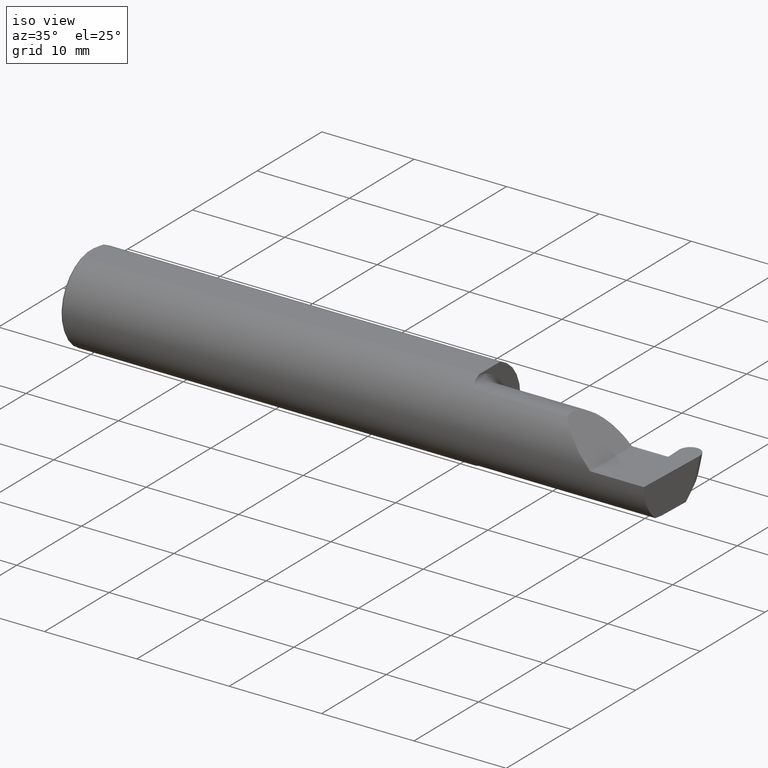
[diagram: clean part render]
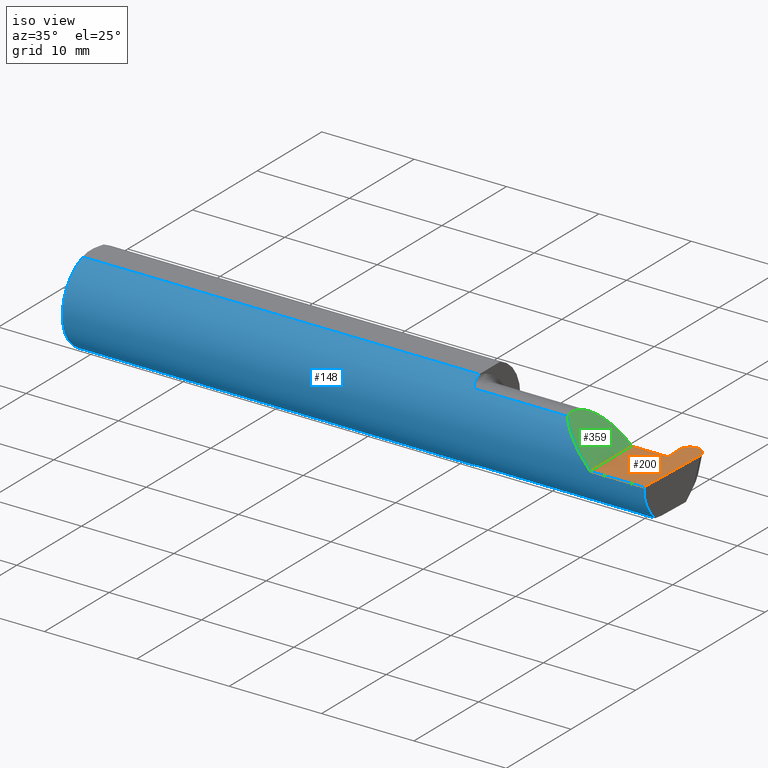
[diagram: same view with three faces highlighted in distinct colors, each labeled with its STEP entity id]
A machine part, iso view with three faces highlighted in distinct colors.
Their STEP definitions:

[orange] entity #200 — the highlighted planar face has unit normal (-0, 0, -1).
#2 = ORIENTED_EDGE ( 'NONE', *, *, #480, .F. ) ;
#6 = EDGE_CURVE ( 'NONE', #579, #405, #473, .T. ) ;
#49 = ORIENTED_EDGE ( 'NONE', *, *, #268, .T. ) ;
#77 = LINE ( 'NONE', #295, #215 ) ;
#80 = DIRECTION ( 'NONE',  ( 1.000000000000000000, -0.000000000000000000, -0.000000000000000000 ) ) ;
#90 = ORIENTED_EDGE ( 'NONE', *, *, #6, .F. ) ;
#94 = FACE_OUTER_BOUND ( 'NONE', #140, .T. ) ;
#101 = AXIS2_PLACEMENT_3D ( 'NONE', #285, #611, #175 ) ;
#134 = VECTOR ( 'NONE', #365, 39.37007874015748143 ) ;
#135 = EDGE_CURVE ( 'NONE', #499, #192, #312, .T. ) ;
#139 = CARTESIAN_POINT ( 'NONE',  ( 2.260000000000000231, -0.1873499999999999888, 2.939152317953647352E-17 ) ) ;
#140 = EDGE_LOOP ( 'NONE', ( #595, #476, #525, #262, #340, #2, #90, #389, #49 ) ) ;
#142 = DIRECTION ( 'NONE',  ( -1.000000000000000000, -0.000000000000000000, -0.000000000000000000 ) ) ;
#160 = CARTESIAN_POINT ( 'NONE',  ( 2.429140065301251372, 0.1846500000000001473, 8.878101985489642774E-18 ) ) ;
#175 = DIRECTION ( 'NONE',  ( -1.000000000000000000, 0.000000000000000000, 1.224646799147353947E-16 ) ) ;
#189 = EDGE_CURVE ( 'NONE', #488, #356, #431, .T. ) ;
#192 = VERTEX_POINT ( 'NONE', #479 ) ;
#195 = CARTESIAN_POINT ( 'NONE',  ( 3.749399456654646757E-32, -0.1873499999999999610, 3.061616997868383634E-16 ) ) ;
#200 = ADVANCED_FACE ( 'NONE', ( #94 ), #582, .F. ) ;
#203 = CARTESIAN_POINT ( 'NONE',  ( 2.488576259503493926, -0.1873499999999999888, 0.000000000000000000 ) ) ;
#211 = CARTESIAN_POINT ( 'NONE',  ( 2.411899392914586659, 0.1370998259008695541, 0.000000000000000000 ) ) ;
#215 = VECTOR ( 'NONE', #675, 39.37007874015748143 ) ;
#228 = DIRECTION ( 'NONE',  ( -0.03489949670249319069, -0.9993908270190959842, 0.000000000000000000 ) ) ;
#243 = LINE ( 'NONE', #515, #694 ) ;
#262 = ORIENTED_EDGE ( 'NONE', *, *, #610, .F. ) ;
#268 = EDGE_CURVE ( 'NONE', #614, #654, #587, .T. ) ;
#285 = CARTESIAN_POINT ( 'NONE',  ( 2.500000000000000000, -0.2500000000000000555, 0.000000000000000000 ) ) ;
#295 = CARTESIAN_POINT ( 'NONE',  ( 2.260000000000000231, -0.2500000000000000555, 2.939152317953647352E-17 ) ) ;
#312 = LINE ( 'NONE', #424, #134 ) ;
#323 = CARTESIAN_POINT ( 'NONE',  ( 2.410932386210230760, 0.1647912748130948291, 1.110789957736176039E-17 ) ) ;
#328 = DIRECTION ( 'NONE',  ( 1.000000000000000000, 2.398695346254066018E-17, 0.000000000000000000 ) ) ;
#330 = EDGE_CURVE ( 'NONE', #333, #654, #243, .T. ) ;
#333 = VERTEX_POINT ( 'NONE', #353 ) ;
#337 = CARTESIAN_POINT ( 'NONE',  ( 2.456309424548497322, 0.1846500000000000363, 0.000000000000000000 ) ) ;
#340 = ORIENTED_EDGE ( 'NONE', *, *, #189, .F. ) ;
#353 = CARTESIAN_POINT ( 'NONE',  ( 2.455496265451502236, 0.1846500000000000363, 0.000000000000000000 ) ) ;
#356 = VERTEX_POINT ( 'NONE', #409 ) ;
#365 = DIRECTION ( 'NONE',  ( -0.03489949670249400948, 0.9993908270190959842, -0.000000000000000000 ) ) ;
#370 = CARTESIAN_POINT ( 'NONE',  ( 2.455496265451502236, 0.1846500000000000363, 0.000000000000000000 ) ) ;
#389 = ORIENTED_EDGE ( 'NONE', *, *, #677, .F. ) ;
#395 = CARTESIAN_POINT ( 'NONE',  ( 2.499906297085412898, 0.1370998259008695819, 0.000000000000000000 ) ) ;
#405 = VERTEX_POINT ( 'NONE', #139 ) ;
#407 = CARTESIAN_POINT ( 'NONE',  ( 2.260000000000000231, 0.06665000000000001479, 9.797174393178831081E-17 ) ) ;
#409 = CARTESIAN_POINT ( 'NONE',  ( 2.405238904245578624, 0.06664999999999991764, 0.000000000000000000 ) ) ;
#411 = VECTOR ( 'NONE', #328, 39.37007874015748143 ) ;
#424 = CARTESIAN_POINT ( 'NONE',  ( 2.411832552795360574, 0.1390138764844879860, 0.000000000000000000 ) ) ;
#430 = LINE ( 'NONE', #649, #471 ) ;
#431 = LINE ( 'NONE', #650, #411 ) ;
#439 = DIRECTION ( 'NONE',  ( 1.000000000000000000, -0.000000000000000000, -0.000000000000000000 ) ) ;
#452 = CARTESIAN_POINT ( 'NONE',  ( 2.499906297085412898, 0.1370998259008695819, 0.000000000000000000 ) ) ;
#471 = VECTOR ( 'NONE', #439, 39.37007874015748143 ) ;
#473 = LINE ( 'NONE', #195, #603 ) ;
#476 = ORIENTED_EDGE ( 'NONE', *, *, #533, .T. ) ;
#479 = CARTESIAN_POINT ( 'NONE',  ( 2.411899392914586659, 0.1370998259008695541, 0.000000000000000000 ) ) ;
#480 = EDGE_CURVE ( 'NONE', #405, #488, #77, .T. ) ;
#488 = VERTEX_POINT ( 'NONE', #407 ) ;
#499 = VERTEX_POINT ( 'NONE', #623 ) ;
#500 = LINE ( 'NONE', #551, #663 ) ;
#509 = CARTESIAN_POINT ( 'NONE',  ( 2.456309424548497322, 0.1846500000000000363, 0.000000000000000000 ) ) ;
#515 = CARTESIAN_POINT ( 'NONE',  ( -0.001039370078739994957, 0.1846500000000000363, 0.000000000000000000 ) ) ;
#525 = ORIENTED_EDGE ( 'NONE', *, *, #135, .F. ) ;
#533 = EDGE_CURVE ( 'NONE', #333, #192, #684, .T. ) ;
#551 = CARTESIAN_POINT ( 'NONE',  ( 2.499973137204639428, 0.1390138764844880415, 0.000000000000000000 ) ) ;
#561 = CARTESIAN_POINT ( 'NONE',  ( 2.482665624698748186, 0.1846499999999999808, 5.261345637967953601E-18 ) ) ;
#579 = VERTEX_POINT ( 'NONE', #203 ) ;
#582 = PLANE ( 'NONE',  #101 ) ;
#587 =( BOUNDED_CURVE ( )  B_SPLINE_CURVE ( 3, ( #452, #604, #561, #509 ),
 .UNSPECIFIED., .F., .T. ) 
 B_SPLINE_CURVE_WITH_KNOTS ( ( 4, 4 ),
 ( 1.627103621474502049, 3.225696776093220475 ),
 .UNSPECIFIED. ) 
 CURVE ( )  GEOMETRIC_REPRESENTATION_ITEM ( )  RATIONAL_B_SPLINE_CURVE ( ( 1.000000000000000000, 0.7981407609938095948, 0.7981407609938095948, 1.000000000000000000 ) ) 
 REPRESENTATION_ITEM ( '' )  );
#595 = ORIENTED_EDGE ( 'NONE', *, *, #330, .F. ) ;
#603 = VECTOR ( 'NONE', #142, 39.37007874015748143 ) ;
#604 = CARTESIAN_POINT ( 'NONE',  ( 2.500873303789769242, 0.1647912748130947458, 3.031548046095857169E-18 ) ) ;
#610 = EDGE_CURVE ( 'NONE', #356, #499, #430, .T. ) ;
#611 = DIRECTION ( 'NONE',  ( -1.224646799147353947E-16, 0.000000000000000000, -1.000000000000000000 ) ) ;
#614 = VERTEX_POINT ( 'NONE', #395 ) ;
#623 = CARTESIAN_POINT ( 'NONE',  ( 2.414359555045604289, 0.06664999999999991764, 0.000000000000000000 ) ) ;
#649 = CARTESIAN_POINT ( 'NONE',  ( 2.414359555045604289, 0.06664999999999991764, 0.000000000000000000 ) ) ;
#650 = CARTESIAN_POINT ( 'NONE',  ( 1.699999999999999956, 0.06664999999999998703, 9.797174393178831081E-17 ) ) ;
#654 = VERTEX_POINT ( 'NONE', #337 ) ;
#663 = VECTOR ( 'NONE', #228, 39.37007874015748854 ) ;
#675 = DIRECTION ( 'NONE',  ( -0.000000000000000000, 1.000000000000000000, -0.000000000000000000 ) ) ;
#677 = EDGE_CURVE ( 'NONE', #614, #579, #500, .T. ) ;
#684 =( BOUNDED_CURVE ( )  B_SPLINE_CURVE ( 3, ( #370, #160, #323, #211 ),
 .UNSPECIFIED., .F., .T. ) 
 B_SPLINE_CURVE_WITH_KNOTS ( ( 4, 4 ),
 ( 3.057488531086357764, 4.656081685705083295 ),
 .UNSPECIFIED. ) 
 CURVE ( )  GEOMETRIC_REPRESENTATION_ITEM ( )  RATIONAL_B_SPLINE_CURVE ( ( 1.000000000000000000, 0.7981407609938078185, 0.7981407609938078185, 1.000000000000000000 ) ) 
 REPRESENTATION_ITEM ( '' )  );
#694 = VECTOR ( 'NONE', #80, 39.37007874015748143 ) ;

[blue] entity #148 — the highlighted cylindrical surface (partial cylindrical patch) has radius 4.7587 mm, axis along (-1, -0, -0).
#3 = CARTESIAN_POINT ( 'NONE',  ( 2.488471823259917226, -0.1172600179964006784, -0.1461167706989303094 ) ) ;
#6 = EDGE_CURVE ( 'NONE', #579, #405, #473, .T. ) ;
#10 = VERTEX_POINT ( 'NONE', #22 ) ;
#22 = CARTESIAN_POINT ( 'NONE',  ( 0.01000000000000013205, 0.06325108694718235836, 0.1763499999999999235 ) ) ;
#24 = CARTESIAN_POINT ( 'NONE',  ( 1.724999999999999867, -0.1172600179964006784, -0.1461167706989303650 ) ) ;
#45 = CARTESIAN_POINT ( 'NONE',  ( 1.699999999999999956, -0.06325108694718287183, 0.1763499999999999235 ) ) ;
#57 = CARTESIAN_POINT ( 'NONE',  ( 1.702960551809340473, -0.09317341542745755101, -0.1626248379125196653 ) ) ;
#59 =( BOUNDED_CURVE ( )  B_SPLINE_CURVE ( 3, ( #597, #543, #701, #145 ),
 .UNSPECIFIED., .F., .T. ) 
 B_SPLINE_CURVE_WITH_KNOTS ( ( 4, 4 ),
 ( 5.852427379562186616, 6.746954780470634461 ),
 .UNSPECIFIED. ) 
 CURVE ( )  GEOMETRIC_REPRESENTATION_ITEM ( )  RATIONAL_B_SPLINE_CURVE ( ( 1.000000000000000000, 0.9344226172588802060, 0.9344226172588802060, 1.000000000000000000 ) ) 
 REPRESENTATION_ITEM ( '' )  );
#74 = CARTESIAN_POINT ( 'NONE',  ( 1.713203859946834218, -0.1120371980050639538, -0.1501764597936558199 ) ) ;
#75 = VERTEX_POINT ( 'NONE', #45 ) ;
#84 = EDGE_LOOP ( 'NONE', ( #230, #378, #293, #522, #138, #648, #394, #336, #372, #98, #236, #216, #398 ) ) ;
#88 = CARTESIAN_POINT ( 'NONE',  ( 2.202189699843948745, -0.1873500000000000443, 0.05781030015605096578 ) ) ;
#93 = CARTESIAN_POINT ( 'NONE',  ( 1.700353553376444671, -0.07868116735658683969, 0.1701139256562800017 ) ) ;
#96 = CARTESIAN_POINT ( 'NONE',  ( 1.724999999999999867, -0.1172600179964006784, 0.1461167706989303650 ) ) ;
#98 = ORIENTED_EDGE ( 'NONE', *, *, #602, .T. ) ;
#100 = CYLINDRICAL_SURFACE ( 'NONE', #637, 0.1873499999999999888 ) ;
#104 = DIRECTION ( 'NONE',  ( -1.000000000000000000, -0.000000000000000000, -0.000000000000000000 ) ) ;
#107 = CARTESIAN_POINT ( 'NONE',  ( 1.702945243422982813, -0.09312071749437433876, 0.1626553472577906001 ) ) ;
#114 = CARTESIAN_POINT ( 'NONE',  ( 2.068402844999999601, -0.1172600179964006784, -0.1461167706989303094 ) ) ;
#116 = DIRECTION ( 'NONE',  ( -1.000000000000000000, -0.000000000000000000, -0.000000000000000000 ) ) ;
#117 = EDGE_CURVE ( 'NONE', #566, #513, #528, .T. ) ;
#118 = CARTESIAN_POINT ( 'NONE',  ( 1.724999999999999867, -0.1172600179964006784, 0.1461167706989303650 ) ) ;
#122 = LINE ( 'NONE', #114, #204 ) ;
#138 = ORIENTED_EDGE ( 'NONE', *, *, #426, .F. ) ;
#139 = CARTESIAN_POINT ( 'NONE',  ( 2.260000000000000231, -0.1873499999999999888, 2.939152317953647352E-17 ) ) ;
#142 = DIRECTION ( 'NONE',  ( -1.000000000000000000, -0.000000000000000000, -0.000000000000000000 ) ) ;
#145 = CARTESIAN_POINT ( 'NONE',  ( 2.488576259503493926, -0.1873499999999999888, 0.000000000000000000 ) ) ;
#148 = ADVANCED_FACE ( 'NONE', ( #274 ), #100, .T. ) ;
#152 = CARTESIAN_POINT ( 'NONE',  ( 1.713163223656403167, -0.1119926267047278018, 0.1502091925606062472 ) ) ;
#170 = EDGE_CURVE ( 'NONE', #322, #592, #457, .T. ) ;
#173 = VERTEX_POINT ( 'NONE', #497 ) ;
#179 = EDGE_CURVE ( 'NONE', #621, #579, #59, .T. ) ;
#183 = CARTESIAN_POINT ( 'NONE',  ( 2.113883229301068312, -0.1172600179964008310, 0.1461167706989301707 ) ) ;
#195 = CARTESIAN_POINT ( 'NONE',  ( 3.749399456654646757E-32, -0.1873499999999999610, 3.061616997868383634E-16 ) ) ;
#203 = CARTESIAN_POINT ( 'NONE',  ( 2.488576259503493926, -0.1873499999999999888, 0.000000000000000000 ) ) ;
#204 = VECTOR ( 'NONE', #512, 39.37007874015748143 ) ;
#210 = EDGE_CURVE ( 'NONE', #566, #75, #335, .T. ) ;
#216 = ORIENTED_EDGE ( 'NONE', *, *, #170, .F. ) ;
#217 = EDGE_CURVE ( 'NONE', #621, #318, #122, .T. ) ;
#218 = CARTESIAN_POINT ( 'NONE',  ( 1.708439486659307116, -0.1064616213911159653, -0.1542305641651499637 ) ) ;
#222 = B_SPLINE_CURVE_WITH_KNOTS ( 'NONE', 3,
 ( #588, #596, #93, #534, #107, #584, #258, #152, #368, #269, #530, #96 ),
 .UNSPECIFIED., .F., .F.,
 ( 4, 2, 2, 2, 2, 4 ),
 ( 4.423516731080805653E-05, 0.0004615475116586709213, 0.0008788598560065337319, 0.001296172200354396651, 0.001504828372528328436, 0.001713484544702260221 ),
 .UNSPECIFIED. ) ;
#227 = CIRCLE ( 'NONE', #628, 0.1873499999999999888 ) ;
#230 = ORIENTED_EDGE ( 'NONE', *, *, #217, .F. ) ;
#233 = CARTESIAN_POINT ( 'NONE',  ( 0.000000000000000000, -0.06325108694718235836, 0.1763499999999999235 ) ) ;
#236 = ORIENTED_EDGE ( 'NONE', *, *, #612, .F. ) ;
#251 = DIRECTION ( 'NONE',  ( 0.000000000000000000, 1.000000000000000000, 0.000000000000000000 ) ) ;
#258 = CARTESIAN_POINT ( 'NONE',  ( 1.708475602106621416, -0.1064978748893405935, 0.1542035505680383889 ) ) ;
#266 = DIRECTION ( 'NONE',  ( 1.000000000000000000, 0.000000000000000000, 0.000000000000000000 ) ) ;
#269 = CARTESIAN_POINT ( 'NONE',  ( 1.719481469043492528, -0.1163560528186166759, 0.1468472430636322823 ) ) ;
#274 = FACE_OUTER_BOUND ( 'NONE', #84, .T. ) ;
#279 = CARTESIAN_POINT ( 'NONE',  ( 1.699999999999999734, -0.07368234487347204154, -0.1723418180300747282 ) ) ;
#293 = ORIENTED_EDGE ( 'NONE', *, *, #6, .T. ) ;
#299 = LINE ( 'NONE', #578, #560 ) ;
#307 = EDGE_CURVE ( 'NONE', #318, #322, #606, .T. ) ;
#310 = CARTESIAN_POINT ( 'NONE',  ( 2.150065971957465294, -0.1623470442677542591, 0.1099340280425336325 ) ) ;
#313 = VERTEX_POINT ( 'NONE', #118 ) ;
#318 = VERTEX_POINT ( 'NONE', #24 ) ;
#319 = DIRECTION ( 'NONE',  ( 0.000000000000000000, 0.000000000000000000, -1.000000000000000000 ) ) ;
#320 = AXIS2_PLACEMENT_3D ( 'NONE', #590, #266, #693 ) ;
#322 = VERTEX_POINT ( 'NONE', #631 ) ;
#324 = CARTESIAN_POINT ( 'NONE',  ( 1.699999999999999956, 0.000000000000000000, 0.000000000000000000 ) ) ;
#335 = LINE ( 'NONE', #233, #355 ) ;
#336 = ORIENTED_EDGE ( 'NONE', *, *, #210, .F. ) ;
#346 =( BOUNDED_CURVE ( )  B_SPLINE_CURVE ( 3, ( #672, #88, #310, #183 ),
 .UNSPECIFIED., .F., .T. ) 
 B_SPLINE_CURVE_WITH_KNOTS ( ( 4, 4 ),
 ( 4.712388980384688786, 5.606916381293135743 ),
 .UNSPECIFIED. ) 
 CURVE ( )  GEOMETRIC_REPRESENTATION_ITEM ( )  RATIONAL_B_SPLINE_CURVE ( ( 1.000000000000000000, 0.9344226172588803170, 0.9344226172588803170, 1.000000000000000000 ) ) 
 REPRESENTATION_ITEM ( '' )  );
#355 = VECTOR ( 'NONE', #667, 39.37007874015748143 ) ;
#364 = CARTESIAN_POINT ( 'NONE',  ( 0.01000000000000013205, 0.000000000000000000, -0.1873499999999999888 ) ) ;
#368 = CARTESIAN_POINT ( 'NONE',  ( 1.715004157323696932, -0.1137044537483316853, 0.1489098419202427859 ) ) ;
#372 = ORIENTED_EDGE ( 'NONE', *, *, #117, .T. ) ;
#374 = DIRECTION ( 'NONE',  ( 1.000000000000000000, 2.398695346254066018E-17, 0.000000000000000000 ) ) ;
#377 = CIRCLE ( 'NONE', #580, 0.1873499999999999888 ) ;
#378 = ORIENTED_EDGE ( 'NONE', *, *, #179, .T. ) ;
#380 = DIRECTION ( 'NONE',  ( 0.000000000000000000, 0.000000000000000000, 1.000000000000000000 ) ) ;
#393 = CARTESIAN_POINT ( 'NONE',  ( 1.699999999999999956, -0.06851976604679071992, -0.1743704796142198366 ) ) ;
#394 = ORIENTED_EDGE ( 'NONE', *, *, #554, .F. ) ;
#398 = ORIENTED_EDGE ( 'NONE', *, *, #307, .F. ) ;
#405 = VERTEX_POINT ( 'NONE', #139 ) ;
#426 = EDGE_CURVE ( 'NONE', #313, #173, #299, .T. ) ;
#427 = CARTESIAN_POINT ( 'NONE',  ( 0.01000000000000013205, 0.000000000000000000, 0.000000000000000000 ) ) ;
#438 = CARTESIAN_POINT ( 'NONE',  ( 1.706304331342287206, -0.1022198306720691896, -0.1570962426853817206 ) ) ;
#441 = EDGE_CURVE ( 'NONE', #405, #173, #346, .T. ) ;
#444 = CARTESIAN_POINT ( 'NONE',  ( 1.724999999999999867, -0.1172600179964006784, -0.1461167706989303650 ) ) ;
#457 = CIRCLE ( 'NONE', #572, 0.1873499999999999888 ) ;
#473 = LINE ( 'NONE', #195, #603 ) ;
#497 = CARTESIAN_POINT ( 'NONE',  ( 2.113883229301068312, -0.1172600179964008310, 0.1461167706989301707 ) ) ;
#504 = CARTESIAN_POINT ( 'NONE',  ( 1.722174967710399462, -0.1172600179964007339, -0.1461167706989303094 ) ) ;
#512 = DIRECTION ( 'NONE',  ( -1.000000000000000000, -2.398695346254066018E-17, -0.000000000000000000 ) ) ;
#513 = VERTEX_POINT ( 'NONE', #364 ) ;
#522 = ORIENTED_EDGE ( 'NONE', *, *, #441, .T. ) ;
#528 = CIRCLE ( 'NONE', #320, 0.1873499999999999888 ) ;
#530 = CARTESIAN_POINT ( 'NONE',  ( 1.722161949849308149, -0.1172600179964062156, 0.1461167706989260073 ) ) ;
#534 = CARTESIAN_POINT ( 'NONE',  ( 1.701829077486399555, -0.08839624499054653251, 0.1652742498708036356 ) ) ;
#538 = CARTESIAN_POINT ( 'NONE',  ( 1.699999999999999956, 0.06325108694718235836, 0.1763499999999999235 ) ) ;
#543 = CARTESIAN_POINT ( 'NONE',  ( 2.487529306701961485, -0.1623470442677541203, -0.1099340280425338268 ) ) ;
#545 = EDGE_CURVE ( 'NONE', #556, #313, #222, .T. ) ;
#548 = DIRECTION ( 'NONE',  ( 1.000000000000000000, 2.398695346254066018E-17, 0.000000000000000000 ) ) ;
#554 = EDGE_CURVE ( 'NONE', #75, #556, #227, .T. ) ;
#556 = VERTEX_POINT ( 'NONE', #689 ) ;
#557 = CARTESIAN_POINT ( 'NONE',  ( 0.000000000000000000, 0.06325108694718235836, 0.1763499999999999235 ) ) ;
#560 = VECTOR ( 'NONE', #620, 39.37007874015748143 ) ;
#565 = CARTESIAN_POINT ( 'NONE',  ( 1.715028532764138136, -0.1137241120808236416, -0.1488947809299402958 ) ) ;
#566 = VERTEX_POINT ( 'NONE', #697 ) ;
#572 = AXIS2_PLACEMENT_3D ( 'NONE', #324, #548, #636 ) ;
#578 = CARTESIAN_POINT ( 'NONE',  ( 2.068402844999999601, -0.1172600179964006784, 0.1461167706989303094 ) ) ;
#579 = VERTEX_POINT ( 'NONE', #203 ) ;
#580 = AXIS2_PLACEMENT_3D ( 'NONE', #427, #645, #319 ) ;
#584 = CARTESIAN_POINT ( 'NONE',  ( 1.706287624083520305, -0.1021858045380146102, 0.1571187174372874473 ) ) ;
#588 = CARTESIAN_POINT ( 'NONE',  ( 1.699999999999999956, -0.06851976604679071992, 0.1743704796142198366 ) ) ;
#590 = CARTESIAN_POINT ( 'NONE',  ( 0.01000000000000013205, 0.000000000000000000, 0.000000000000000000 ) ) ;
#592 = VERTEX_POINT ( 'NONE', #538 ) ;
#596 = CARTESIAN_POINT ( 'NONE',  ( 1.699999999999999289, -0.07367581953296709063, 0.1723443821957854338 ) ) ;
#597 = CARTESIAN_POINT ( 'NONE',  ( 2.488471823259917226, -0.1172600179964006784, -0.1461167706989303094 ) ) ;
#600 = CARTESIAN_POINT ( 'NONE',  ( 1.700358271039143387, -0.07873626113568088503, -0.1700887912276895508 ) ) ;
#602 = EDGE_CURVE ( 'NONE', #513, #10, #377, .T. ) ;
#603 = VECTOR ( 'NONE', #142, 39.37007874015748143 ) ;
#606 = B_SPLINE_CURVE_WITH_KNOTS ( 'NONE', 3,
 ( #444, #504, #616, #565, #74, #218, #438, #57, #664, #600, #279, #393 ),
 .UNSPECIFIED., .F., .F.,
 ( 4, 2, 2, 2, 2, 4 ),
 ( 1.967976973658592312E-07, 0.0002120314145722273808, 0.0004238660314470888671, 0.0008475352651968001303, 0.001271204498946511231, 0.001694873732696222223 ),
 .UNSPECIFIED. ) ;
#612 = EDGE_CURVE ( 'NONE', #592, #10, #662, .T. ) ;
#616 = CARTESIAN_POINT ( 'NONE',  ( 1.719511795768554174, -0.1163687266324235497, -0.1468371510166788518 ) ) ;
#617 = VECTOR ( 'NONE', #116, 39.37007874015748143 ) ;
#620 = DIRECTION ( 'NONE',  ( 1.000000000000000000, 2.398695346254066018E-17, 0.000000000000000000 ) ) ;
#621 = VERTEX_POINT ( 'NONE', #3 ) ;
#628 = AXIS2_PLACEMENT_3D ( 'NONE', #692, #374, #251 ) ;
#631 = CARTESIAN_POINT ( 'NONE',  ( 1.699999999999999956, -0.06851976604679071992, -0.1743704796142198366 ) ) ;
#636 = DIRECTION ( 'NONE',  ( 0.000000000000000000, 1.000000000000000000, 0.000000000000000000 ) ) ;
#637 = AXIS2_PLACEMENT_3D ( 'NONE', #698, #104, #380 ) ;
#645 = DIRECTION ( 'NONE',  ( 1.000000000000000000, 0.000000000000000000, 0.000000000000000000 ) ) ;
#648 = ORIENTED_EDGE ( 'NONE', *, *, #545, .F. ) ;
#662 = LINE ( 'NONE', #557, #617 ) ;
#664 = CARTESIAN_POINT ( 'NONE',  ( 1.701843912362377864, -0.08846956905169099661, -0.1652353808078971253 ) ) ;
#667 = DIRECTION ( 'NONE',  ( 1.000000000000000000, 0.000000000000000000, 0.000000000000000000 ) ) ;
#672 = CARTESIAN_POINT ( 'NONE',  ( 2.260000000000000231, -0.1873499999999999888, 2.939152317953647352E-17 ) ) ;
#689 = CARTESIAN_POINT ( 'NONE',  ( 1.699999999999999956, -0.06851976604679071992, 0.1743704796142198366 ) ) ;
#692 = CARTESIAN_POINT ( 'NONE',  ( 1.699999999999999956, 0.000000000000000000, 0.000000000000000000 ) ) ;
#693 = DIRECTION ( 'NONE',  ( 0.000000000000000000, 0.000000000000000000, -1.000000000000000000 ) ) ;
#697 = CARTESIAN_POINT ( 'NONE',  ( 0.01000000000000013205, -0.06325108694718235836, 0.1763499999999999235 ) ) ;
#698 = CARTESIAN_POINT ( 'NONE',  ( 0.000000000000000000, 0.000000000000000000, 0.000000000000000000 ) ) ;
#701 = CARTESIAN_POINT ( 'NONE',  ( 2.487566561880238947, -0.1873500000000000165, -0.05781030015605114619 ) ) ;

[green] entity #359 — the highlighted planar face has unit normal (-0.7071, 0, -0.7071).
#77 = LINE ( 'NONE', #295, #215 ) ;
#83 = FACE_OUTER_BOUND ( 'NONE', #130, .T. ) ;
#88 = CARTESIAN_POINT ( 'NONE',  ( 2.202189699843948745, -0.1873500000000000443, 0.05781030015605096578 ) ) ;
#130 = EDGE_LOOP ( 'NONE', ( #154, #536, #660 ) ) ;
#131 = CARTESIAN_POINT ( 'NONE',  ( 2.155331797197863608, 0.06665000000000001479, 0.1046682028021362204 ) ) ;
#136 = PLANE ( 'NONE',  #483 ) ;
#139 = CARTESIAN_POINT ( 'NONE',  ( 2.260000000000000231, -0.1873499999999999888, 2.939152317953647352E-17 ) ) ;
#141 = DIRECTION ( 'NONE',  ( -0.7071067811865509034, 0.000000000000000000, 0.7071067811865440200 ) ) ;
#154 = ORIENTED_EDGE ( 'NONE', *, *, #391, .F. ) ;
#173 = VERTEX_POINT ( 'NONE', #497 ) ;
#183 = CARTESIAN_POINT ( 'NONE',  ( 2.113883229301068312, -0.1172600179964008310, 0.1461167706989301707 ) ) ;
#215 = VECTOR ( 'NONE', #675, 39.37007874015748143 ) ;
#295 = CARTESIAN_POINT ( 'NONE',  ( 2.260000000000000231, -0.2500000000000000555, 2.939152317953647352E-17 ) ) ;
#310 = CARTESIAN_POINT ( 'NONE',  ( 2.150065971957465294, -0.1623470442677542591, 0.1099340280425336325 ) ) ;
#346 =( BOUNDED_CURVE ( )  B_SPLINE_CURVE ( 3, ( #672, #88, #310, #183 ),
 .UNSPECIFIED., .F., .T. ) 
 B_SPLINE_CURVE_WITH_KNOTS ( ( 4, 4 ),
 ( 4.712388980384688786, 5.606916381293135743 ),
 .UNSPECIFIED. ) 
 CURVE ( )  GEOMETRIC_REPRESENTATION_ITEM ( )  RATIONAL_B_SPLINE_CURVE ( ( 1.000000000000000000, 0.9344226172588803170, 0.9344226172588803170, 1.000000000000000000 ) ) 
 REPRESENTATION_ITEM ( '' )  );
#359 = ADVANCED_FACE ( 'NONE', ( #83 ), #136, .F. ) ;
#391 = EDGE_CURVE ( 'NONE', #173, #488, #703, .T. ) ;
#405 = VERTEX_POINT ( 'NONE', #139 ) ;
#407 = CARTESIAN_POINT ( 'NONE',  ( 2.260000000000000231, 0.06665000000000001479, 9.797174393178831081E-17 ) ) ;
#441 = EDGE_CURVE ( 'NONE', #405, #173, #346, .T. ) ;
#460 = CARTESIAN_POINT ( 'NONE',  ( 2.260000000000000231, -0.2500000000000000555, 2.939152317953647352E-17 ) ) ;
#467 = CARTESIAN_POINT ( 'NONE',  ( 2.113883229301068312, -0.1172600179964008310, 0.1461167706989301707 ) ) ;
#480 = EDGE_CURVE ( 'NONE', #405, #488, #77, .T. ) ;
#483 = AXIS2_PLACEMENT_3D ( 'NONE', #460, #567, #141 ) ;
#488 = VERTEX_POINT ( 'NONE', #407 ) ;
#497 = CARTESIAN_POINT ( 'NONE',  ( 2.113883229301068312, -0.1172600179964008310, 0.1461167706989301707 ) ) ;
#536 = ORIENTED_EDGE ( 'NONE', *, *, #441, .F. ) ;
#567 = DIRECTION ( 'NONE',  ( -0.7071067811865441310, 0.000000000000000000, -0.7071067811865510144 ) ) ;
#660 = ORIENTED_EDGE ( 'NONE', *, *, #480, .T. ) ;
#672 = CARTESIAN_POINT ( 'NONE',  ( 2.260000000000000231, -0.1873499999999999888, 2.939152317953647352E-17 ) ) ;
#675 = DIRECTION ( 'NONE',  ( -0.000000000000000000, 1.000000000000000000, -0.000000000000000000 ) ) ;
#680 = CARTESIAN_POINT ( 'NONE',  ( 2.090221225029925911, -0.01530148607434181872, 0.1697787749700727933 ) ) ;
#686 = CARTESIAN_POINT ( 'NONE',  ( 2.260000000000000231, 0.06665000000000001479, 9.797174393178831081E-17 ) ) ;
#703 =( BOUNDED_CURVE ( )  B_SPLINE_CURVE ( 3, ( #467, #680, #131, #686 ),
 .UNSPECIFIED., .F., .T. ) 
 B_SPLINE_CURVE_WITH_KNOTS ( ( 4, 4 ),
 ( 6.055147272130140479, 7.853981633974482790 ),
 .UNSPECIFIED. ) 
 CURVE ( )  GEOMETRIC_REPRESENTATION_ITEM ( )  RATIONAL_B_SPLINE_CURVE ( ( 1.000000000000000000, 0.7480442670255262883, 0.7480442670255262883, 1.000000000000000000 ) ) 
 REPRESENTATION_ITEM ( '' )  );